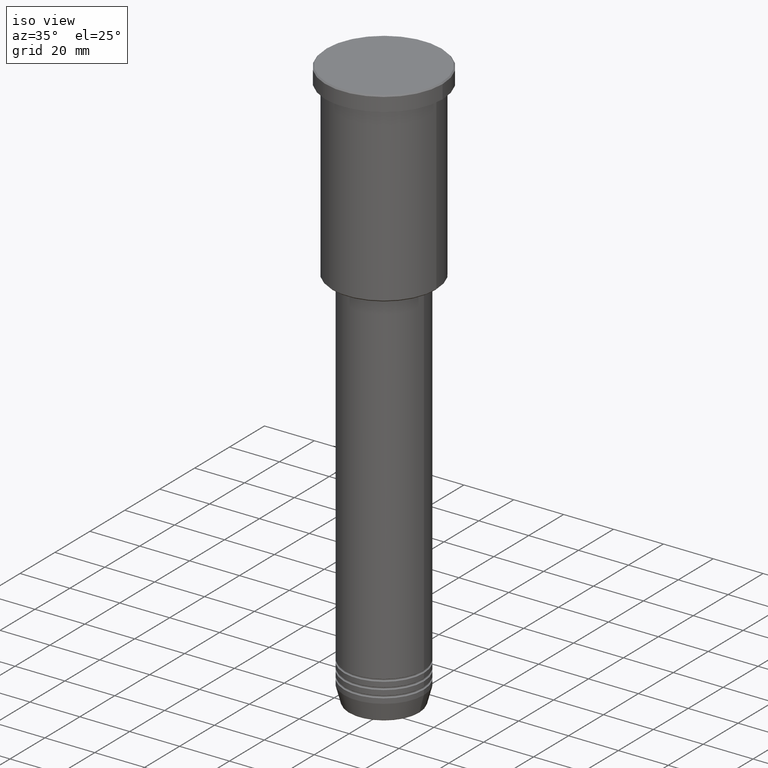
[diagram: clean part render]
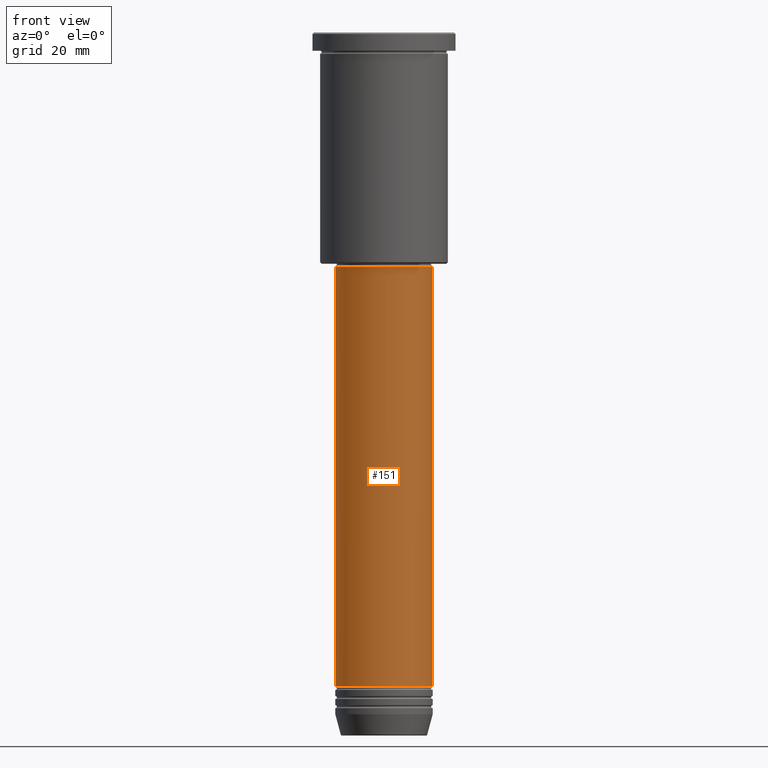
[diagram: tour spotlight — one face highlighted and labeled with its STEP entity id]
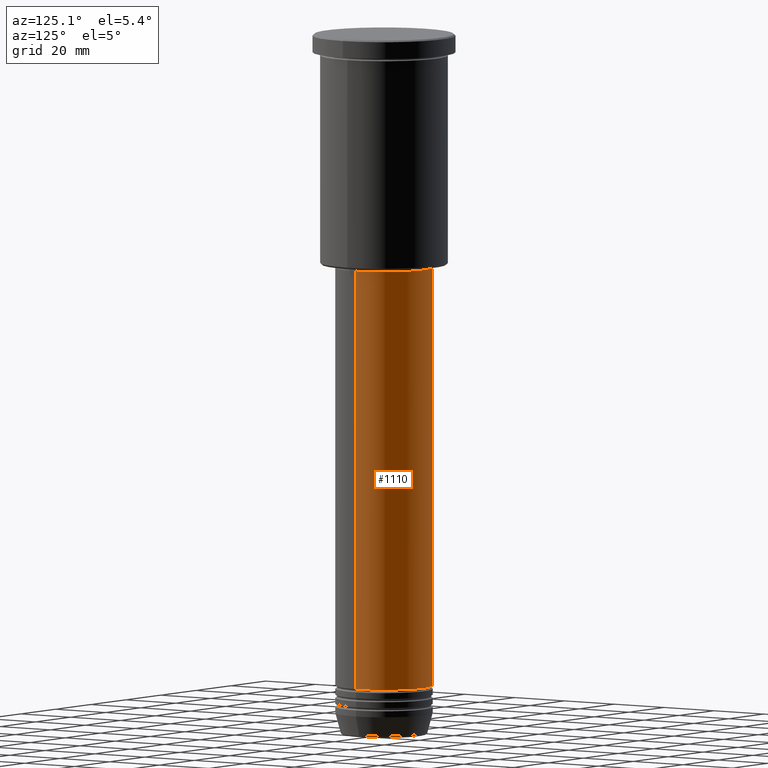
[diagram: tour spotlight — one face highlighted and labeled with its STEP entity id]
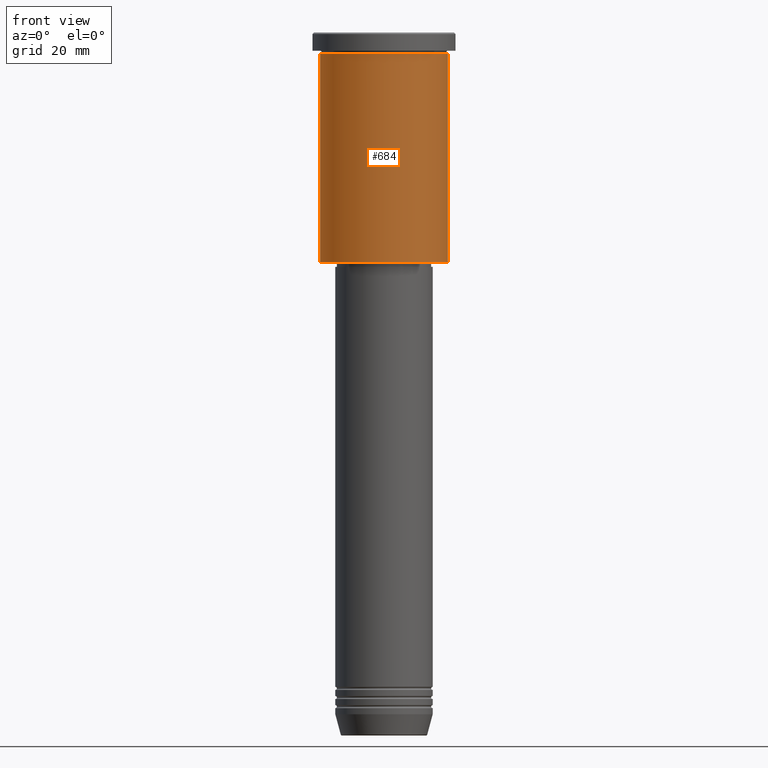
[diagram: tour spotlight — one face highlighted and labeled with its STEP entity id]
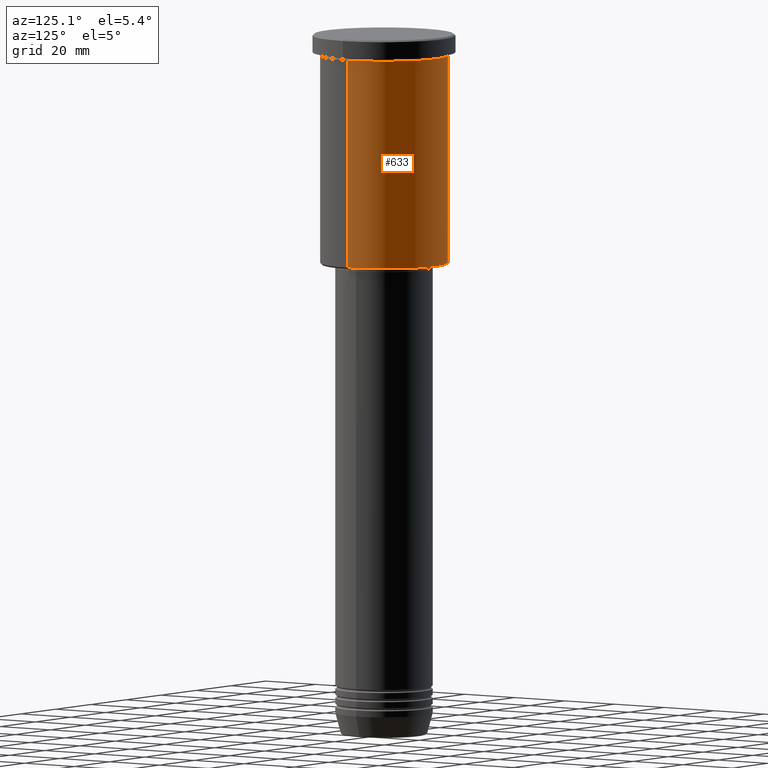
[diagram: tour spotlight — one face highlighted and labeled with its STEP entity id]
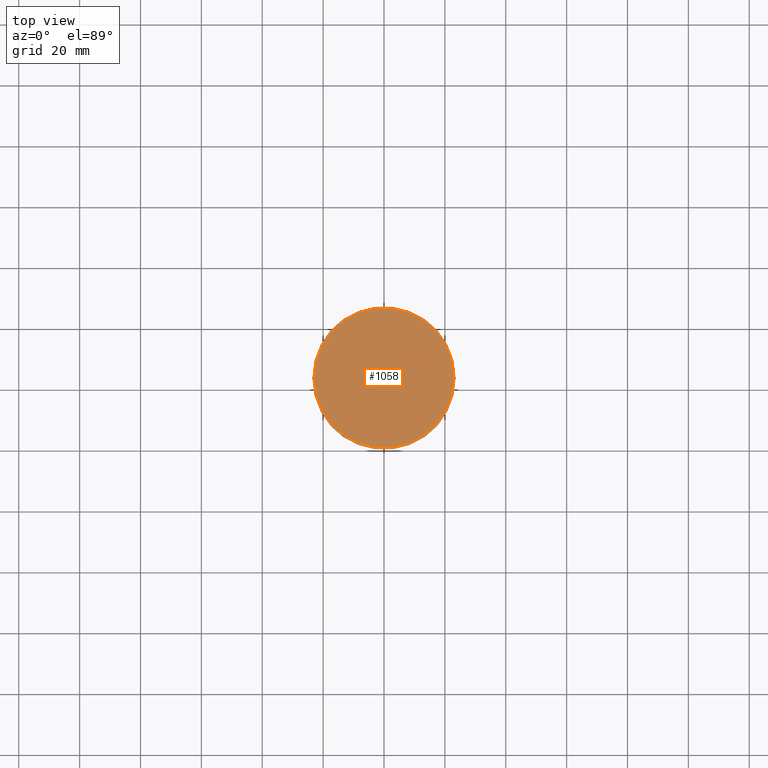
[diagram: tour spotlight — one face highlighted and labeled with its STEP entity id]
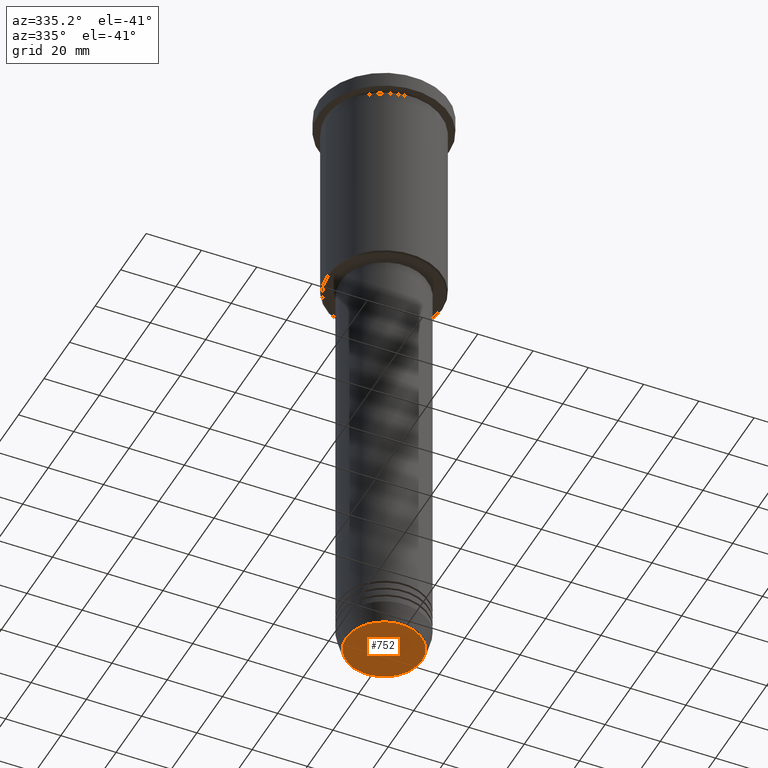
[diagram: tour spotlight — one face highlighted and labeled with its STEP entity id]
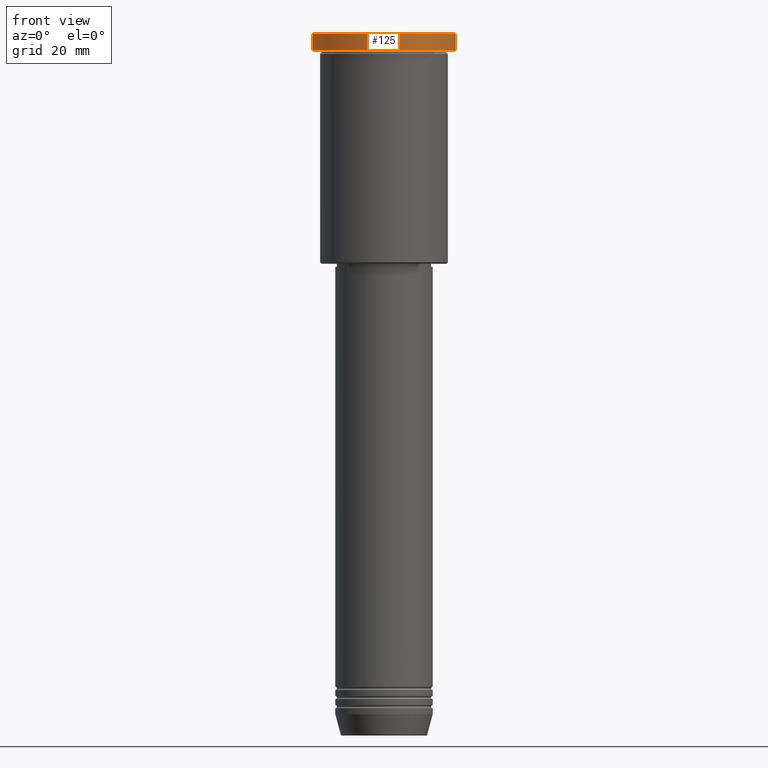
[diagram: tour spotlight — one face highlighted and labeled with its STEP entity id]
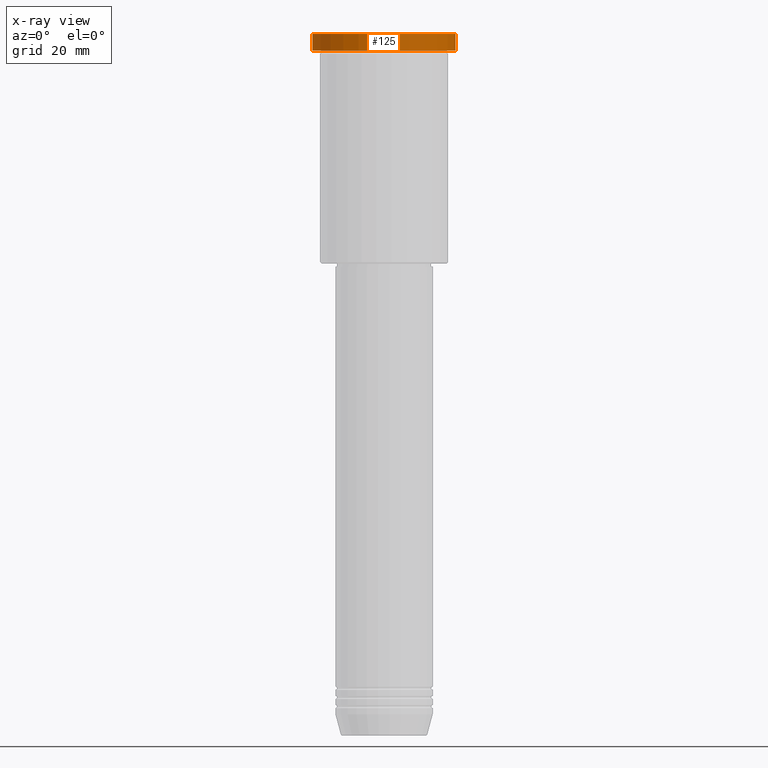
[diagram: x-ray of the same camera — body ghosted, this tour face saturated]
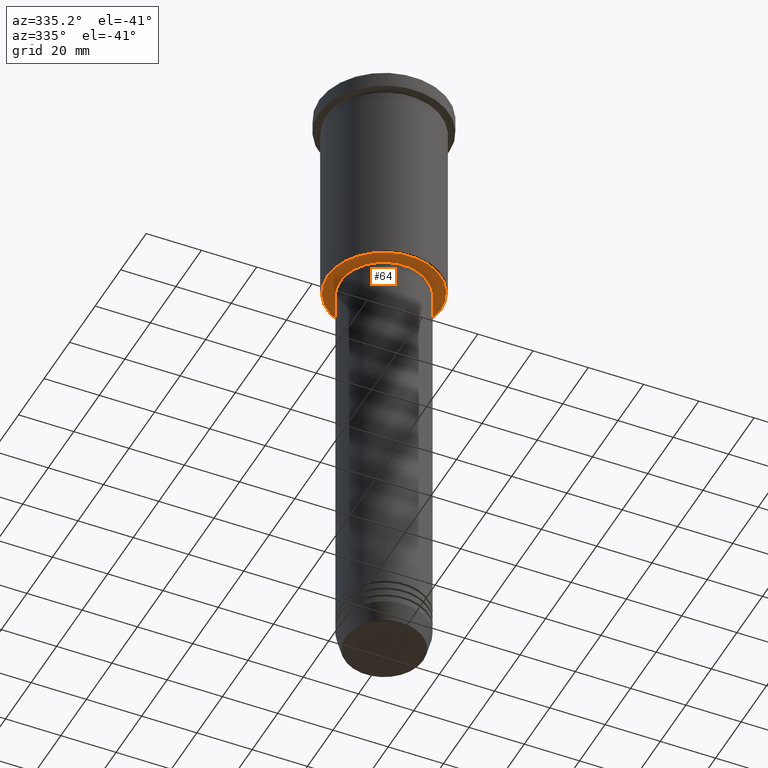
[diagram: tour spotlight — one face highlighted and labeled with its STEP entity id]
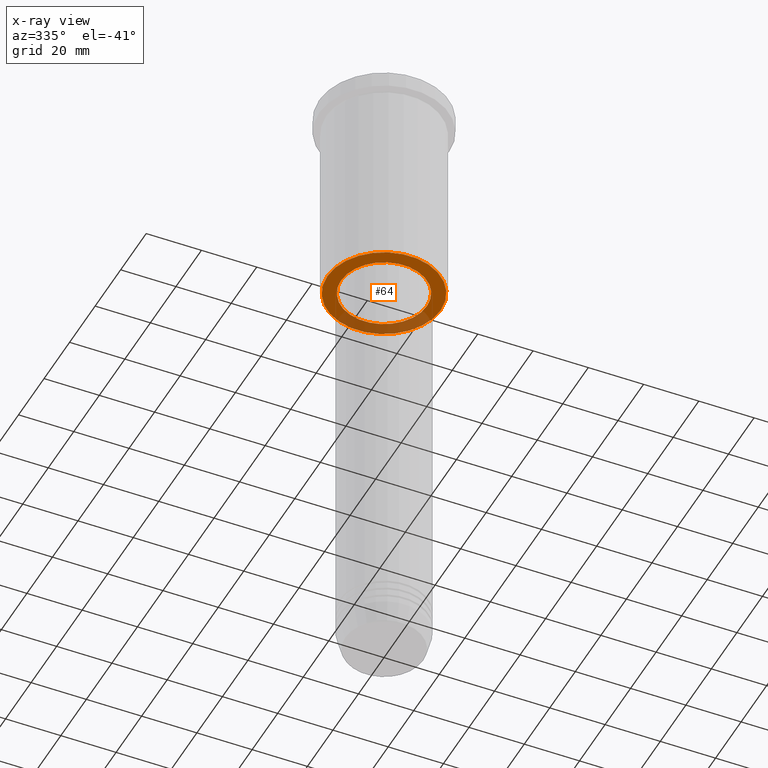
[diagram: x-ray of the same camera — body ghosted, this tour face saturated]
A machine part: a face-by-face anatomy tour. The part has 43 B-rep faces; the first image is the clean iso view, then the 8 largest visible faces are spotlighted one at a time (largest first), each with its STEP entity span.

Face 1 — front view, entity #151. In plain terms, the highlighted cylindrical surface (partial cylindrical patch) has radius 16 mm, axis along (-0, -0, 1).
Definition (entity closure, byte-faithful):
#133 = CARTESIAN_POINT ( 'NONE',  ( 16.00000000000000000, 0.000000000000000000, -214.9999999999999716 ) ) ;
#135 = FACE_OUTER_BOUND ( 'NONE', #581, .T. ) ;
#137 = CARTESIAN_POINT ( 'NONE',  ( 0.000000000000000000, 0.000000000000000000, -76.99999999999998579 ) ) ;
#151 = ADVANCED_FACE ( 'NONE', ( #135 ), #965, .T. ) ;
#182 = ORIENTED_EDGE ( 'NONE', *, *, #491, .T. ) ;
#228 = ORIENTED_EDGE ( 'NONE', *, *, #980, .F. ) ;
#312 = DIRECTION ( 'NONE',  ( -0.000000000000000000, -0.000000000000000000, 1.000000000000000000 ) ) ;
#313 = AXIS2_PLACEMENT_3D ( 'NONE', #932, #1131, #388 ) ;
#371 = ORIENTED_EDGE ( 'NONE', *, *, #933, .T. ) ;
#388 = DIRECTION ( 'NONE',  ( 1.000000000000000000, 0.000000000000000000, 0.000000000000000000 ) ) ;
#423 = DIRECTION ( 'NONE',  ( -0.000000000000000000, -0.000000000000000000, 1.000000000000000000 ) ) ;
#435 = CARTESIAN_POINT ( 'NONE',  ( 0.000000000000000000, 0.000000000000000000, 0.000000000000000000 ) ) ;
#491 = EDGE_CURVE ( 'NONE', #704, #1098, #1040, .T. ) ;
#581 = EDGE_LOOP ( 'NONE', ( #228, #371, #182, #977 ) ) ;
#641 = CIRCLE ( 'NONE', #1174, 16.00000000000000000 ) ;
#653 = DIRECTION ( 'NONE',  ( -0.000000000000000000, -0.000000000000000000, 1.000000000000000000 ) ) ;
#700 = EDGE_CURVE ( 'NONE', #1031, #1098, #641, .T. ) ;
#704 = VERTEX_POINT ( 'NONE', #133 ) ;
#744 = CARTESIAN_POINT ( 'NONE',  ( -16.00000000000000000, 1.959434878635765131E-15, -214.9999999999999716 ) ) ;
#759 = CARTESIAN_POINT ( 'NONE',  ( -16.00000000000000000, 1.959434878635765131E-15, -76.99999999999998579 ) ) ;
#841 = DIRECTION ( 'NONE',  ( -0.000000000000000000, -0.000000000000000000, 1.000000000000000000 ) ) ;
#871 = DIRECTION ( 'NONE',  ( 1.000000000000000000, 0.000000000000000000, 0.000000000000000000 ) ) ;
#898 = VERTEX_POINT ( 'NONE', #744 ) ;
#929 = VECTOR ( 'NONE', #841, 1000.000000000000000 ) ;
#932 = CARTESIAN_POINT ( 'NONE',  ( 0.000000000000000000, 0.000000000000000000, -214.9999999999999716 ) ) ;
#933 = EDGE_CURVE ( 'NONE', #898, #704, #1176, .T. ) ;
#940 = CARTESIAN_POINT ( 'NONE',  ( 16.00000000000000000, 0.000000000000000000, 0.000000000000000000 ) ) ;
#952 = DIRECTION ( 'NONE',  ( 1.000000000000000000, 0.000000000000000000, 0.000000000000000000 ) ) ;
#965 = CYLINDRICAL_SURFACE ( 'NONE', #1119, 16.00000000000000000 ) ;
#977 = ORIENTED_EDGE ( 'NONE', *, *, #700, .F. ) ;
#980 = EDGE_CURVE ( 'NONE', #898, #1031, #1128, .T. ) ;
#1016 = CARTESIAN_POINT ( 'NONE',  ( -16.00000000000000000, 1.959434878635765131E-15, 0.000000000000000000 ) ) ;
#1031 = VERTEX_POINT ( 'NONE', #759 ) ;
#1040 = LINE ( 'NONE', #940, #1122 ) ;
#1051 = CARTESIAN_POINT ( 'NONE',  ( 16.00000000000000000, 0.000000000000000000, -76.99999999999998579 ) ) ;
#1098 = VERTEX_POINT ( 'NONE', #1051 ) ;
#1119 = AXIS2_PLACEMENT_3D ( 'NONE', #435, #423, #871 ) ;
#1122 = VECTOR ( 'NONE', #653, 1000.000000000000000 ) ;
#1128 = LINE ( 'NONE', #1016, #929 ) ;
#1131 = DIRECTION ( 'NONE',  ( -0.000000000000000000, -0.000000000000000000, 1.000000000000000000 ) ) ;
#1174 = AXIS2_PLACEMENT_3D ( 'NONE', #137, #312, #952 ) ;
#1176 = CIRCLE ( 'NONE', #313, 16.00000000000000000 ) ;

Face 2 — auxiliary view, entity #1110. In plain terms, the highlighted cylindrical surface (partial cylindrical patch) has radius 16 mm, axis along (-0, -0, 1).
Definition (entity closure, byte-faithful):
#63 = FACE_OUTER_BOUND ( 'NONE', #1105, .T. ) ;
#130 = CYLINDRICAL_SURFACE ( 'NONE', #353, 16.00000000000000000 ) ;
#133 = CARTESIAN_POINT ( 'NONE',  ( 16.00000000000000000, 0.000000000000000000, -214.9999999999999716 ) ) ;
#155 = CIRCLE ( 'NONE', #355, 16.00000000000000000 ) ;
#197 = CIRCLE ( 'NONE', #483, 16.00000000000000000 ) ;
#205 = EDGE_CURVE ( 'NONE', #704, #898, #155, .T. ) ;
#222 = CARTESIAN_POINT ( 'NONE',  ( 0.000000000000000000, 0.000000000000000000, 0.000000000000000000 ) ) ;
#253 = ORIENTED_EDGE ( 'NONE', *, *, #719, .F. ) ;
#353 = AXIS2_PLACEMENT_3D ( 'NONE', #222, #696, #954 ) ;
#355 = AXIS2_PLACEMENT_3D ( 'NONE', #603, #888, #969 ) ;
#483 = AXIS2_PLACEMENT_3D ( 'NONE', #502, #869, #787 ) ;
#491 = EDGE_CURVE ( 'NONE', #704, #1098, #1040, .T. ) ;
#502 = CARTESIAN_POINT ( 'NONE',  ( 0.000000000000000000, 0.000000000000000000, -76.99999999999998579 ) ) ;
#603 = CARTESIAN_POINT ( 'NONE',  ( 0.000000000000000000, 0.000000000000000000, -214.9999999999999716 ) ) ;
#653 = DIRECTION ( 'NONE',  ( -0.000000000000000000, -0.000000000000000000, 1.000000000000000000 ) ) ;
#696 = DIRECTION ( 'NONE',  ( -0.000000000000000000, -0.000000000000000000, 1.000000000000000000 ) ) ;
#704 = VERTEX_POINT ( 'NONE', #133 ) ;
#719 = EDGE_CURVE ( 'NONE', #1098, #1031, #197, .T. ) ;
#744 = CARTESIAN_POINT ( 'NONE',  ( -16.00000000000000000, 1.959434878635765131E-15, -214.9999999999999716 ) ) ;
#759 = CARTESIAN_POINT ( 'NONE',  ( -16.00000000000000000, 1.959434878635765131E-15, -76.99999999999998579 ) ) ;
#784 = ORIENTED_EDGE ( 'NONE', *, *, #491, .F. ) ;
#787 = DIRECTION ( 'NONE',  ( 1.000000000000000000, 0.000000000000000000, 0.000000000000000000 ) ) ;
#811 = ORIENTED_EDGE ( 'NONE', *, *, #205, .T. ) ;
#841 = DIRECTION ( 'NONE',  ( -0.000000000000000000, -0.000000000000000000, 1.000000000000000000 ) ) ;
#869 = DIRECTION ( 'NONE',  ( -0.000000000000000000, -0.000000000000000000, 1.000000000000000000 ) ) ;
#883 = ORIENTED_EDGE ( 'NONE', *, *, #980, .T. ) ;
#888 = DIRECTION ( 'NONE',  ( -0.000000000000000000, -0.000000000000000000, 1.000000000000000000 ) ) ;
#898 = VERTEX_POINT ( 'NONE', #744 ) ;
#929 = VECTOR ( 'NONE', #841, 1000.000000000000000 ) ;
#940 = CARTESIAN_POINT ( 'NONE',  ( 16.00000000000000000, 0.000000000000000000, 0.000000000000000000 ) ) ;
#954 = DIRECTION ( 'NONE',  ( 1.000000000000000000, 0.000000000000000000, 0.000000000000000000 ) ) ;
#969 = DIRECTION ( 'NONE',  ( 1.000000000000000000, 0.000000000000000000, 0.000000000000000000 ) ) ;
#980 = EDGE_CURVE ( 'NONE', #898, #1031, #1128, .T. ) ;
#1016 = CARTESIAN_POINT ( 'NONE',  ( -16.00000000000000000, 1.959434878635765131E-15, 0.000000000000000000 ) ) ;
#1031 = VERTEX_POINT ( 'NONE', #759 ) ;
#1040 = LINE ( 'NONE', #940, #1122 ) ;
#1051 = CARTESIAN_POINT ( 'NONE',  ( 16.00000000000000000, 0.000000000000000000, -76.99999999999998579 ) ) ;
#1098 = VERTEX_POINT ( 'NONE', #1051 ) ;
#1105 = EDGE_LOOP ( 'NONE', ( #811, #883, #253, #784 ) ) ;
#1110 = ADVANCED_FACE ( 'NONE', ( #63 ), #130, .T. ) ;
#1122 = VECTOR ( 'NONE', #653, 1000.000000000000000 ) ;
#1128 = LINE ( 'NONE', #1016, #929 ) ;

Face 3 — front view, entity #684. In plain terms, the highlighted cylindrical surface (partial cylindrical patch) has radius 21 mm, axis along (-0, -0, 1).
Definition (entity closure, byte-faithful):
#26 = EDGE_CURVE ( 'NONE', #938, #1039, #30, .T. ) ;
#30 = LINE ( 'NONE', #756, #673 ) ;
#55 = CYLINDRICAL_SURFACE ( 'NONE', #714, 21.00000000000000000 ) ;
#101 = DIRECTION ( 'NONE',  ( -0.000000000000000000, -0.000000000000000000, 1.000000000000000000 ) ) ;
#148 = DIRECTION ( 'NONE',  ( -0.000000000000000000, -0.000000000000000000, 1.000000000000000000 ) ) ;
#183 = DIRECTION ( 'NONE',  ( -0.000000000000000000, -0.000000000000000000, 1.000000000000000000 ) ) ;
#188 = DIRECTION ( 'NONE',  ( 1.000000000000000000, 0.000000000000000000, 0.000000000000000000 ) ) ;
#214 = ORIENTED_EDGE ( 'NONE', *, *, #446, .T. ) ;
#215 = CARTESIAN_POINT ( 'NONE',  ( 21.00000000000000000, 0.000000000000000000, -75.50000000000001421 ) ) ;
#290 = DIRECTION ( 'NONE',  ( -0.000000000000000000, -0.000000000000000000, 1.000000000000000000 ) ) ;
#376 = CARTESIAN_POINT ( 'NONE',  ( 0.000000000000000000, 0.000000000000000000, -75.50000000000001421 ) ) ;
#383 = DIRECTION ( 'NONE',  ( -1.000000000000000000, 0.000000000000000000, 0.000000000000000000 ) ) ;
#412 = CIRCLE ( 'NONE', #1084, 21.00000000000000000 ) ;
#418 = EDGE_CURVE ( 'NONE', #1039, #912, #872, .T. ) ;
#446 = EDGE_CURVE ( 'NONE', #567, #912, #552, .T. ) ;
#458 = CARTESIAN_POINT ( 'NONE',  ( 0.000000000000000000, 0.000000000000000000, -6.999999999999994671 ) ) ;
#500 = CARTESIAN_POINT ( 'NONE',  ( -21.00000000000000000, 2.571758278209441661E-15, -6.999999999999994671 ) ) ;
#507 = DIRECTION ( 'NONE',  ( 1.000000000000000000, 0.000000000000000000, 0.000000000000000000 ) ) ;
#552 = LINE ( 'NONE', #922, #1060 ) ;
#567 = VERTEX_POINT ( 'NONE', #215 ) ;
#673 = VECTOR ( 'NONE', #1135, 1000.000000000000000 ) ;
#684 = ADVANCED_FACE ( 'NONE', ( #698 ), #55, .T. ) ;
#698 = FACE_OUTER_BOUND ( 'NONE', #806, .T. ) ;
#706 = CARTESIAN_POINT ( 'NONE',  ( 0.000000000000000000, 0.000000000000000000, 0.000000000000000000 ) ) ;
#714 = AXIS2_PLACEMENT_3D ( 'NONE', #706, #148, #507 ) ;
#748 = CARTESIAN_POINT ( 'NONE',  ( 21.00000000000000000, 0.000000000000000000, -6.999999999999994671 ) ) ;
#756 = CARTESIAN_POINT ( 'NONE',  ( -21.00000000000000000, 2.571758278209441661E-15, 0.000000000000000000 ) ) ;
#806 = EDGE_LOOP ( 'NONE', ( #1000, #842, #214, #852 ) ) ;
#842 = ORIENTED_EDGE ( 'NONE', *, *, #1003, .T. ) ;
#852 = ORIENTED_EDGE ( 'NONE', *, *, #418, .F. ) ;
#872 = CIRCLE ( 'NONE', #1172, 21.00000000000000000 ) ;
#912 = VERTEX_POINT ( 'NONE', #748 ) ;
#921 = CARTESIAN_POINT ( 'NONE',  ( -21.00000000000000000, 2.571758278209441661E-15, -75.50000000000001421 ) ) ;
#922 = CARTESIAN_POINT ( 'NONE',  ( 21.00000000000000000, 0.000000000000000000, 0.000000000000000000 ) ) ;
#938 = VERTEX_POINT ( 'NONE', #921 ) ;
#1000 = ORIENTED_EDGE ( 'NONE', *, *, #26, .F. ) ;
#1003 = EDGE_CURVE ( 'NONE', #938, #567, #412, .T. ) ;
#1039 = VERTEX_POINT ( 'NONE', #500 ) ;
#1060 = VECTOR ( 'NONE', #101, 1000.000000000000000 ) ;
#1084 = AXIS2_PLACEMENT_3D ( 'NONE', #376, #290, #383 ) ;
#1135 = DIRECTION ( 'NONE',  ( -0.000000000000000000, -0.000000000000000000, 1.000000000000000000 ) ) ;
#1172 = AXIS2_PLACEMENT_3D ( 'NONE', #458, #183, #188 ) ;

Face 4 — auxiliary view, entity #633. In plain terms, the highlighted cylindrical surface (partial cylindrical patch) has radius 21 mm, axis along (-0, -0, 1).
Definition (entity closure, byte-faithful):
#26 = EDGE_CURVE ( 'NONE', #938, #1039, #30, .T. ) ;
#30 = LINE ( 'NONE', #756, #673 ) ;
#58 = ORIENTED_EDGE ( 'NONE', *, *, #26, .T. ) ;
#76 = DIRECTION ( 'NONE',  ( -0.000000000000000000, -0.000000000000000000, 1.000000000000000000 ) ) ;
#101 = DIRECTION ( 'NONE',  ( -0.000000000000000000, -0.000000000000000000, 1.000000000000000000 ) ) ;
#143 = DIRECTION ( 'NONE',  ( -0.000000000000000000, -0.000000000000000000, 1.000000000000000000 ) ) ;
#194 = ORIENTED_EDGE ( 'NONE', *, *, #446, .F. ) ;
#215 = CARTESIAN_POINT ( 'NONE',  ( 21.00000000000000000, 0.000000000000000000, -75.50000000000001421 ) ) ;
#311 = AXIS2_PLACEMENT_3D ( 'NONE', #426, #1053, #896 ) ;
#422 = CARTESIAN_POINT ( 'NONE',  ( 0.000000000000000000, 0.000000000000000000, -6.999999999999994671 ) ) ;
#426 = CARTESIAN_POINT ( 'NONE',  ( 0.000000000000000000, 0.000000000000000000, 0.000000000000000000 ) ) ;
#446 = EDGE_CURVE ( 'NONE', #567, #912, #552, .T. ) ;
#456 = EDGE_CURVE ( 'NONE', #567, #938, #757, .T. ) ;
#463 = CARTESIAN_POINT ( 'NONE',  ( 0.000000000000000000, 0.000000000000000000, -75.50000000000001421 ) ) ;
#500 = CARTESIAN_POINT ( 'NONE',  ( -21.00000000000000000, 2.571758278209441661E-15, -6.999999999999994671 ) ) ;
#501 = AXIS2_PLACEMENT_3D ( 'NONE', #422, #143, #876 ) ;
#552 = LINE ( 'NONE', #922, #1060 ) ;
#560 = AXIS2_PLACEMENT_3D ( 'NONE', #463, #76, #1171 ) ;
#567 = VERTEX_POINT ( 'NONE', #215 ) ;
#632 = ORIENTED_EDGE ( 'NONE', *, *, #456, .T. ) ;
#633 = ADVANCED_FACE ( 'NONE', ( #1064 ), #769, .T. ) ;
#661 = EDGE_CURVE ( 'NONE', #912, #1039, #857, .T. ) ;
#673 = VECTOR ( 'NONE', #1135, 1000.000000000000000 ) ;
#693 = ORIENTED_EDGE ( 'NONE', *, *, #661, .F. ) ;
#748 = CARTESIAN_POINT ( 'NONE',  ( 21.00000000000000000, 0.000000000000000000, -6.999999999999994671 ) ) ;
#756 = CARTESIAN_POINT ( 'NONE',  ( -21.00000000000000000, 2.571758278209441661E-15, 0.000000000000000000 ) ) ;
#757 = CIRCLE ( 'NONE', #560, 21.00000000000000000 ) ;
#769 = CYLINDRICAL_SURFACE ( 'NONE', #311, 21.00000000000000000 ) ;
#857 = CIRCLE ( 'NONE', #501, 21.00000000000000000 ) ;
#876 = DIRECTION ( 'NONE',  ( 1.000000000000000000, 0.000000000000000000, 0.000000000000000000 ) ) ;
#896 = DIRECTION ( 'NONE',  ( 1.000000000000000000, 0.000000000000000000, 0.000000000000000000 ) ) ;
#912 = VERTEX_POINT ( 'NONE', #748 ) ;
#921 = CARTESIAN_POINT ( 'NONE',  ( -21.00000000000000000, 2.571758278209441661E-15, -75.50000000000001421 ) ) ;
#922 = CARTESIAN_POINT ( 'NONE',  ( 21.00000000000000000, 0.000000000000000000, 0.000000000000000000 ) ) ;
#938 = VERTEX_POINT ( 'NONE', #921 ) ;
#1006 = EDGE_LOOP ( 'NONE', ( #632, #58, #693, #194 ) ) ;
#1039 = VERTEX_POINT ( 'NONE', #500 ) ;
#1053 = DIRECTION ( 'NONE',  ( -0.000000000000000000, -0.000000000000000000, 1.000000000000000000 ) ) ;
#1060 = VECTOR ( 'NONE', #101, 1000.000000000000000 ) ;
#1064 = FACE_OUTER_BOUND ( 'NONE', #1006, .T. ) ;
#1135 = DIRECTION ( 'NONE',  ( -0.000000000000000000, -0.000000000000000000, 1.000000000000000000 ) ) ;
#1171 = DIRECTION ( 'NONE',  ( -1.000000000000000000, 0.000000000000000000, 0.000000000000000000 ) ) ;

Face 5 — top view, entity #1058. In plain terms, the highlighted planar face has unit normal (0, -0, 1).
Definition (entity closure, byte-faithful):
#66 = CARTESIAN_POINT ( 'NONE',  ( 0.000000000000000000, 0.000000000000000000, 0.000000000000000000 ) ) ;
#89 = CIRCLE ( 'NONE', #444, 22.99999999999991118 ) ;
#94 = CARTESIAN_POINT ( 'NONE',  ( 0.000000000000000000, 0.000000000000000000, 0.000000000000000000 ) ) ;
#165 = VERTEX_POINT ( 'NONE', #701 ) ;
#195 = CIRCLE ( 'NONE', #908, 22.99999999999991118 ) ;
#211 = EDGE_CURVE ( 'NONE', #549, #165, #195, .T. ) ;
#326 = DIRECTION ( 'NONE',  ( 1.000000000000000000, 0.000000000000000000, 0.000000000000000000 ) ) ;
#341 = ORIENTED_EDGE ( 'NONE', *, *, #772, .T. ) ;
#430 = DIRECTION ( 'NONE',  ( -0.000000000000000000, -0.000000000000000000, 1.000000000000000000 ) ) ;
#444 = AXIS2_PLACEMENT_3D ( 'NONE', #94, #828, #710 ) ;
#460 = EDGE_LOOP ( 'NONE', ( #341, #464 ) ) ;
#464 = ORIENTED_EDGE ( 'NONE', *, *, #211, .T. ) ;
#471 = CARTESIAN_POINT ( 'NONE',  ( 22.99999999999991118, 2.847303808017590617E-15, 0.000000000000000000 ) ) ;
#549 = VERTEX_POINT ( 'NONE', #471 ) ;
#701 = CARTESIAN_POINT ( 'NONE',  ( -22.99999999999991118, 0.000000000000000000, 0.000000000000000000 ) ) ;
#710 = DIRECTION ( 'NONE',  ( 1.000000000000000000, 0.000000000000000000, 0.000000000000000000 ) ) ;
#747 = AXIS2_PLACEMENT_3D ( 'NONE', #875, #1144, #791 ) ;
#768 = FACE_OUTER_BOUND ( 'NONE', #460, .T. ) ;
#772 = EDGE_CURVE ( 'NONE', #165, #549, #89, .T. ) ;
#791 = DIRECTION ( 'NONE',  ( 1.000000000000000000, 0.000000000000000000, 0.000000000000000000 ) ) ;
#828 = DIRECTION ( 'NONE',  ( -0.000000000000000000, -0.000000000000000000, 1.000000000000000000 ) ) ;
#875 = CARTESIAN_POINT ( 'NONE',  ( 0.000000000000000000, 0.000000000000000000, 0.000000000000000000 ) ) ;
#908 = AXIS2_PLACEMENT_3D ( 'NONE', #66, #430, #326 ) ;
#963 = PLANE ( 'NONE',  #747 ) ;
#1058 = ADVANCED_FACE ( 'NONE', ( #768 ), #963, .T. ) ;
#1144 = DIRECTION ( 'NONE',  ( 0.000000000000000000, -0.000000000000000000, 1.000000000000000000 ) ) ;

Face 6 — auxiliary view, entity #752. In plain terms, the highlighted planar face has unit normal (0, -0, 1).
Definition (entity closure, byte-faithful):
#96 = VERTEX_POINT ( 'NONE', #844 ) ;
#104 = CIRCLE ( 'NONE', #1102, 13.74069215899266538 ) ;
#115 = CARTESIAN_POINT ( 'NONE',  ( -13.74069215899266538, 1.712322416342416577E-15, -230.9999999999999716 ) ) ;
#203 = CARTESIAN_POINT ( 'NONE',  ( 0.000000000000000000, 0.000000000000000000, -230.9999999999999716 ) ) ;
#280 = AXIS2_PLACEMENT_3D ( 'NONE', #203, #939, #484 ) ;
#374 = AXIS2_PLACEMENT_3D ( 'NONE', #1170, #1181, #1007 ) ;
#416 = FACE_OUTER_BOUND ( 'NONE', #1068, .T. ) ;
#484 = DIRECTION ( 'NONE',  ( 1.000000000000000000, 0.000000000000000000, 0.000000000000000000 ) ) ;
#486 = DIRECTION ( 'NONE',  ( 0.000000000000000000, 0.000000000000000000, -1.000000000000000000 ) ) ;
#527 = EDGE_CURVE ( 'NONE', #1008, #96, #104, .T. ) ;
#564 = CARTESIAN_POINT ( 'NONE',  ( 0.000000000000000000, 0.000000000000000000, -230.9999999999999716 ) ) ;
#728 = ORIENTED_EDGE ( 'NONE', *, *, #900, .T. ) ;
#752 = ADVANCED_FACE ( 'NONE', ( #416 ), #909, .F. ) ;
#844 = CARTESIAN_POINT ( 'NONE',  ( 13.74069215899266538, 0.000000000000000000, -230.9999999999999716 ) ) ;
#900 = EDGE_CURVE ( 'NONE', #96, #1008, #962, .T. ) ;
#909 = PLANE ( 'NONE',  #374 ) ;
#939 = DIRECTION ( 'NONE',  ( 0.000000000000000000, 0.000000000000000000, -1.000000000000000000 ) ) ;
#948 = ORIENTED_EDGE ( 'NONE', *, *, #527, .T. ) ;
#962 = CIRCLE ( 'NONE', #280, 13.74069215899266538 ) ;
#1007 = DIRECTION ( 'NONE',  ( 1.000000000000000000, 0.000000000000000000, 0.000000000000000000 ) ) ;
#1008 = VERTEX_POINT ( 'NONE', #115 ) ;
#1068 = EDGE_LOOP ( 'NONE', ( #728, #948 ) ) ;
#1102 = AXIS2_PLACEMENT_3D ( 'NONE', #564, #486, #1121 ) ;
#1121 = DIRECTION ( 'NONE',  ( 1.000000000000000000, 0.000000000000000000, 0.000000000000000000 ) ) ;
#1170 = CARTESIAN_POINT ( 'NONE',  ( 0.000000000000000000, 0.000000000000000000, -230.9999999999999716 ) ) ;
#1181 = DIRECTION ( 'NONE',  ( 0.000000000000000000, -0.000000000000000000, 1.000000000000000000 ) ) ;

Face 7 — front view, entity #125. An x-ray twin of the same camera follows (body ghosted, this face saturated) — the face is partly hidden behind the body. In plain terms, the highlighted cylindrical surface (partial cylindrical patch) has radius 23.5 mm, axis along (-0, -0, 1).
Definition (entity closure, byte-faithful):
#15 = AXIS2_PLACEMENT_3D ( 'NONE', #687, #1066, #140 ) ;
#95 = DIRECTION ( 'NONE',  ( -0.000000000000000000, -0.000000000000000000, 1.000000000000000000 ) ) ;
#100 = ORIENTED_EDGE ( 'NONE', *, *, #330, .F. ) ;
#108 = CARTESIAN_POINT ( 'NONE',  ( 23.50000000000000000, 0.000000000000000000, 0.000000000000000000 ) ) ;
#125 = ADVANCED_FACE ( 'NONE', ( #481 ), #850, .T. ) ;
#140 = DIRECTION ( 'NONE',  ( 1.000000000000000000, 0.000000000000000000, 0.000000000000000000 ) ) ;
#174 = CARTESIAN_POINT ( 'NONE',  ( -23.50000000000000000, 2.877919977996280320E-15, 0.000000000000000000 ) ) ;
#175 = ORIENTED_EDGE ( 'NONE', *, *, #602, .T. ) ;
#177 = VECTOR ( 'NONE', #95, 1000.000000000000000 ) ;
#181 = CARTESIAN_POINT ( 'NONE',  ( 23.50000000000000000, 0.000000000000000000, -5.999999999999994671 ) ) ;
#201 = EDGE_CURVE ( 'NONE', #833, #798, #255, .T. ) ;
#233 = AXIS2_PLACEMENT_3D ( 'NONE', #291, #600, #1153 ) ;
#255 = CIRCLE ( 'NONE', #428, 23.50000000000000000 ) ;
#262 = ORIENTED_EDGE ( 'NONE', *, *, #201, .T. ) ;
#291 = CARTESIAN_POINT ( 'NONE',  ( 0.000000000000000000, 0.000000000000000000, -5.999999999999994671 ) ) ;
#330 = EDGE_CURVE ( 'NONE', #1168, #798, #637, .T. ) ;
#368 = CARTESIAN_POINT ( 'NONE',  ( 23.50000000000000000, 0.000000000000000000, -0.5000000000000837108 ) ) ;
#428 = AXIS2_PLACEMENT_3D ( 'NONE', #608, #778, #588 ) ;
#481 = FACE_OUTER_BOUND ( 'NONE', #1030, .T. ) ;
#588 = DIRECTION ( 'NONE',  ( 1.000000000000000000, 0.000000000000000000, 0.000000000000000000 ) ) ;
#599 = VECTOR ( 'NONE', #843, 1000.000000000000000 ) ;
#600 = DIRECTION ( 'NONE',  ( -0.000000000000000000, -0.000000000000000000, 1.000000000000000000 ) ) ;
#602 = EDGE_CURVE ( 'NONE', #889, #833, #926, .T. ) ;
#605 = CARTESIAN_POINT ( 'NONE',  ( -23.50000000000000000, 2.877919977996280320E-15, -5.999999999999994671 ) ) ;
#608 = CARTESIAN_POINT ( 'NONE',  ( 0.000000000000000000, 0.000000000000000000, -0.5000000000000837108 ) ) ;
#615 = EDGE_CURVE ( 'NONE', #1168, #889, #1155, .T. ) ;
#636 = CARTESIAN_POINT ( 'NONE',  ( -23.50000000000000000, 2.877919977996280320E-15, -0.5000000000000837108 ) ) ;
#637 = LINE ( 'NONE', #174, #177 ) ;
#687 = CARTESIAN_POINT ( 'NONE',  ( 0.000000000000000000, 0.000000000000000000, 0.000000000000000000 ) ) ;
#778 = DIRECTION ( 'NONE',  ( 0.000000000000000000, 0.000000000000000000, -1.000000000000000000 ) ) ;
#798 = VERTEX_POINT ( 'NONE', #636 ) ;
#833 = VERTEX_POINT ( 'NONE', #368 ) ;
#843 = DIRECTION ( 'NONE',  ( -0.000000000000000000, -0.000000000000000000, 1.000000000000000000 ) ) ;
#850 = CYLINDRICAL_SURFACE ( 'NONE', #15, 23.50000000000000000 ) ;
#889 = VERTEX_POINT ( 'NONE', #181 ) ;
#926 = LINE ( 'NONE', #108, #599 ) ;
#1030 = EDGE_LOOP ( 'NONE', ( #100, #1063, #175, #262 ) ) ;
#1063 = ORIENTED_EDGE ( 'NONE', *, *, #615, .T. ) ;
#1066 = DIRECTION ( 'NONE',  ( -0.000000000000000000, -0.000000000000000000, 1.000000000000000000 ) ) ;
#1153 = DIRECTION ( 'NONE',  ( 1.000000000000000000, 0.000000000000000000, 0.000000000000000000 ) ) ;
#1155 = CIRCLE ( 'NONE', #233, 23.50000000000000000 ) ;
#1168 = VERTEX_POINT ( 'NONE', #605 ) ;

Face 8 — auxiliary view, entity #64. An x-ray twin of the same camera follows (body ghosted, this face saturated) — the face is partly hidden behind the body. In plain terms, the highlighted planar face has unit normal (0, 0, -1).
Definition (entity closure, byte-faithful):
#43 = CARTESIAN_POINT ( 'NONE',  ( 15.50000000000000000, 0.000000000000000000, -75.99999999999998579 ) ) ;
#64 = ADVANCED_FACE ( 'NONE', ( #862, #406 ), #770, .T. ) ;
#93 = VERTEX_POINT ( 'NONE', #473 ) ;
#176 = AXIS2_PLACEMENT_3D ( 'NONE', #668, #930, #494 ) ;
#248 = ORIENTED_EDGE ( 'NONE', *, *, #860, .T. ) ;
#252 = CARTESIAN_POINT ( 'NONE',  ( 0.000000000000000000, 0.000000000000000000, -75.99999999999998579 ) ) ;
#283 = DIRECTION ( 'NONE',  ( -1.000000000000000000, 0.000000000000000000, 0.000000000000000000 ) ) ;
#324 = EDGE_CURVE ( 'NONE', #623, #93, #442, .T. ) ;
#334 = DIRECTION ( 'NONE',  ( 1.000000000000000000, 0.000000000000000000, 0.000000000000000000 ) ) ;
#406 = FACE_BOUND ( 'NONE', #622, .T. ) ;
#442 = CIRCLE ( 'NONE', #674, 20.50000000000004619 ) ;
#449 = EDGE_LOOP ( 'NONE', ( #525, #625 ) ) ;
#473 = CARTESIAN_POINT ( 'NONE',  ( -20.50000000000004619, 2.541142108230760635E-15, -75.99999999999998579 ) ) ;
#494 = DIRECTION ( 'NONE',  ( -1.000000000000000000, 0.000000000000000000, -0.000000000000000000 ) ) ;
#506 = DIRECTION ( 'NONE',  ( -0.000000000000000000, -0.000000000000000000, 1.000000000000000000 ) ) ;
#525 = ORIENTED_EDGE ( 'NONE', *, *, #324, .T. ) ;
#537 = VERTEX_POINT ( 'NONE', #43 ) ;
#544 = CIRCLE ( 'NONE', #642, 15.50000000000000000 ) ;
#622 = EDGE_LOOP ( 'NONE', ( #986, #248 ) ) ;
#623 = VERTEX_POINT ( 'NONE', #1160 ) ;
#624 = DIRECTION ( 'NONE',  ( 1.000000000000000000, 0.000000000000000000, 0.000000000000000000 ) ) ;
#625 = ORIENTED_EDGE ( 'NONE', *, *, #837, .T. ) ;
#642 = AXIS2_PLACEMENT_3D ( 'NONE', #1093, #1085, #624 ) ;
#668 = CARTESIAN_POINT ( 'NONE',  ( 0.000000000000000000, 21.00000000000000000, -75.99999999999998579 ) ) ;
#674 = AXIS2_PLACEMENT_3D ( 'NONE', #817, #737, #283 ) ;
#715 = CIRCLE ( 'NONE', #858, 20.50000000000004619 ) ;
#737 = DIRECTION ( 'NONE',  ( 0.000000000000000000, 0.000000000000000000, -1.000000000000000000 ) ) ;
#749 = AXIS2_PLACEMENT_3D ( 'NONE', #780, #506, #334 ) ;
#770 = PLANE ( 'NONE',  #176 ) ;
#780 = CARTESIAN_POINT ( 'NONE',  ( 0.000000000000000000, 0.000000000000000000, -75.99999999999998579 ) ) ;
#785 = CARTESIAN_POINT ( 'NONE',  ( -15.50000000000000000, 1.898202538678397557E-15, -75.99999999999998579 ) ) ;
#800 = DIRECTION ( 'NONE',  ( -1.000000000000000000, 0.000000000000000000, 0.000000000000000000 ) ) ;
#808 = DIRECTION ( 'NONE',  ( 0.000000000000000000, 0.000000000000000000, -1.000000000000000000 ) ) ;
#817 = CARTESIAN_POINT ( 'NONE',  ( 0.000000000000000000, 0.000000000000000000, -75.99999999999998579 ) ) ;
#837 = EDGE_CURVE ( 'NONE', #93, #623, #715, .T. ) ;
#858 = AXIS2_PLACEMENT_3D ( 'NONE', #252, #808, #800 ) ;
#860 = EDGE_CURVE ( 'NONE', #1094, #537, #544, .T. ) ;
#862 = FACE_OUTER_BOUND ( 'NONE', #449, .T. ) ;
#930 = DIRECTION ( 'NONE',  ( 0.000000000000000000, 0.000000000000000000, -1.000000000000000000 ) ) ;
#986 = ORIENTED_EDGE ( 'NONE', *, *, #1134, .T. ) ;
#1073 = CIRCLE ( 'NONE', #749, 15.50000000000000000 ) ;
#1085 = DIRECTION ( 'NONE',  ( -0.000000000000000000, -0.000000000000000000, 1.000000000000000000 ) ) ;
#1093 = CARTESIAN_POINT ( 'NONE',  ( 0.000000000000000000, 0.000000000000000000, -75.99999999999998579 ) ) ;
#1094 = VERTEX_POINT ( 'NONE', #785 ) ;
#1134 = EDGE_CURVE ( 'NONE', #537, #1094, #1073, .T. ) ;
#1160 = CARTESIAN_POINT ( 'NONE',  ( 20.50000000000004619, 0.000000000000000000, -75.99999999999998579 ) ) ;